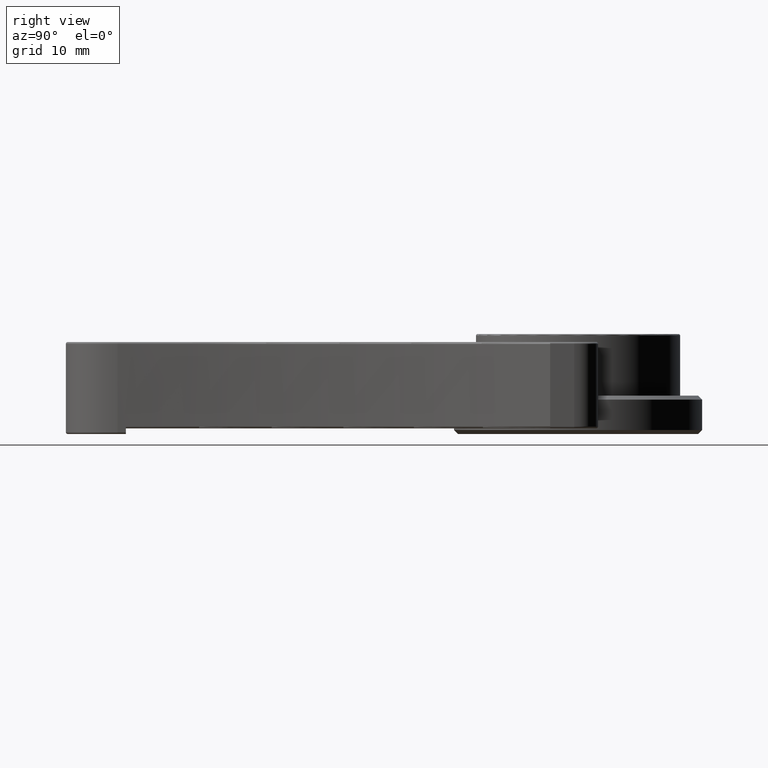
[diagram: clean part render]
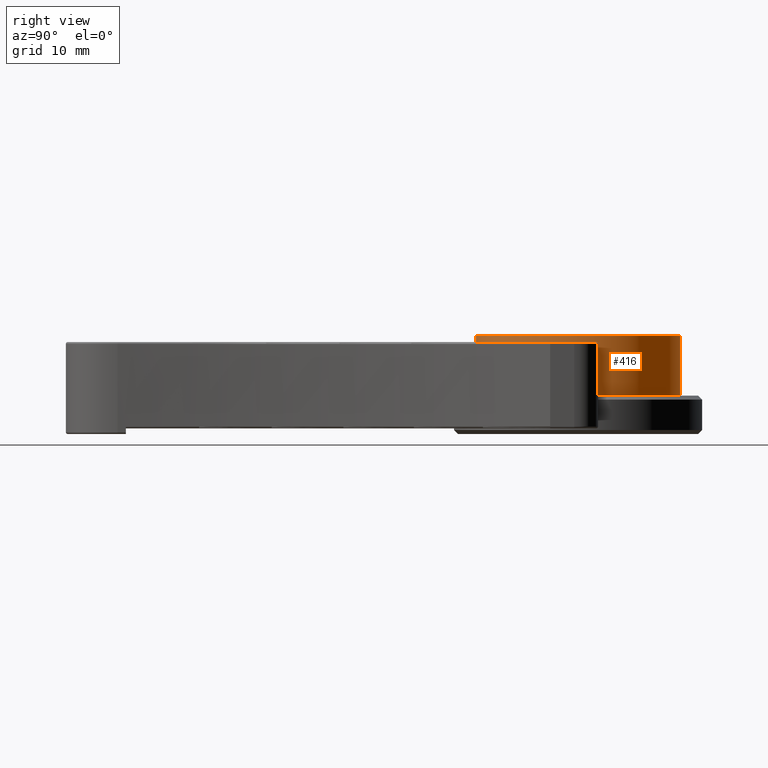
[diagram: same view with one face highlighted and labeled with its STEP entity id]
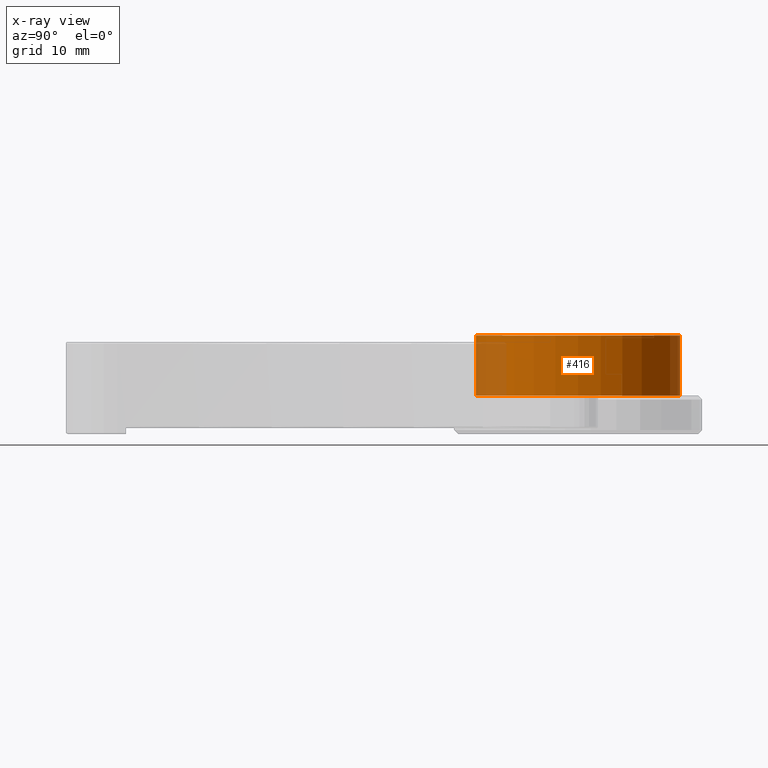
[diagram: x-ray of the same camera — body ghosted, the highlighted face saturated]
A machine part, right view. The second image highlights one B-rep face of the part: STEP entity #416.
The next image is the same camera in x-ray: the body ghosted, the highlighted face saturated — about 13% of this face is hidden behind the body in this view.
In plain terms, the highlighted cylindrical surface (partial cylindrical patch) has radius 12.75 mm, axis along (-0, -0, 1).
Its self-contained STEP definition (entity closure, byte-faithful):
#213 = AXIS2_PLACEMENT_3D ( 'NONE', #1270, #1041, #1025 ) ;
#276 = DIRECTION ( 'NONE',  ( -2.775557561562890700E-017, -4.783484228537276700E-017, 1.000000000000000000 ) ) ;
#328 = AXIS2_PLACEMENT_3D ( 'NONE', #1649, #1028, #1465 ) ;
#331 = AXIS2_PLACEMENT_3D ( 'NONE', #1077, #1325, #1315 ) ;
#414 = CARTESIAN_POINT ( 'NONE',  ( -9.222868784247589200E-012, 69.75000000000056800, 11.60000000000000000 ) ) ;
#416 = ADVANCED_FACE ( 'NONE', ( #994 ), #2269, .T. ) ;
#623 = ORIENTED_EDGE ( 'NONE', *, *, #2250, .T. ) ;
#638 = CARTESIAN_POINT ( 'NONE',  ( -9.222764700839029000E-012, 69.75000000000056800, 4.100000000000000500 ) ) ;
#747 = VERTEX_POINT ( 'NONE', #815 ) ;
#815 = CARTESIAN_POINT ( 'NONE',  ( -9.224430208916499500E-012, 44.25000000000058300, 11.60000000000000000 ) ) ;
#994 = FACE_OUTER_BOUND ( 'NONE', #1341, .T. ) ;
#1023 = ORIENTED_EDGE ( 'NONE', *, *, #2546, .T. ) ;
#1025 = DIRECTION ( 'NONE',  ( 0.0000000000000000000, 1.000000000000000000, 0.0000000000000000000 ) ) ;
#1028 = DIRECTION ( 'NONE',  ( 2.775557561562890700E-017, 4.783484228537276700E-017, -1.000000000000000000 ) ) ;
#1041 = DIRECTION ( 'NONE',  ( -2.775557561562890700E-017, -4.783484228537276700E-017, 1.000000000000000000 ) ) ;
#1042 = VERTEX_POINT ( 'NONE', #414 ) ;
#1077 = CARTESIAN_POINT ( 'NONE',  ( -9.222764700839029000E-012, 57.00000000000057600, 4.099999999999999600 ) ) ;
#1140 = DIRECTION ( 'NONE',  ( -2.775557561562890700E-017, -4.783484228537276700E-017, 1.000000000000000000 ) ) ;
#1181 = LINE ( 'NONE', #2205, #2532 ) ;
#1225 = EDGE_CURVE ( 'NONE', #1829, #747, #1181, .T. ) ;
#1270 = CARTESIAN_POINT ( 'NONE',  ( -9.222978418771269700E-012, 57.00000000000057600, 11.80000000000000100 ) ) ;
#1279 = EDGE_CURVE ( 'NONE', #1829, #1503, #1628, .T. ) ;
#1315 = DIRECTION ( 'NONE',  ( 0.0000000000000000000, 1.000000000000000000, 6.802837160693361600E-017 ) ) ;
#1325 = DIRECTION ( 'NONE',  ( -2.775557561562890700E-017, -4.783484228537276700E-017, 1.000000000000000000 ) ) ;
#1341 = EDGE_LOOP ( 'NONE', ( #1416, #2758, #623, #1023 ) ) ;
#1403 = VECTOR ( 'NONE', #1140, 1000.000000000000000 ) ;
#1416 = ORIENTED_EDGE ( 'NONE', *, *, #1225, .F. ) ;
#1465 = DIRECTION ( 'NONE',  ( 0.0000000000000000000, -1.000000000000000000, 0.0000000000000000000 ) ) ;
#1503 = VERTEX_POINT ( 'NONE', #638 ) ;
#1628 = CIRCLE ( 'NONE', #331, 12.74999999999999800 ) ;
#1649 = CARTESIAN_POINT ( 'NONE',  ( -9.222972867656146200E-012, 57.00000000000057600, 11.60000000000000000 ) ) ;
#1829 = VERTEX_POINT ( 'NONE', #2263 ) ;
#2005 = CARTESIAN_POINT ( 'NONE',  ( -9.222978418771269700E-012, 69.75000000000056800, 11.80000000000000100 ) ) ;
#2205 = CARTESIAN_POINT ( 'NONE',  ( -9.224539843440181600E-012, 44.25000000000058300, 11.80000000000000100 ) ) ;
#2250 = EDGE_CURVE ( 'NONE', #1503, #1042, #2271, .T. ) ;
#2263 = CARTESIAN_POINT ( 'NONE',  ( -9.224430208916499500E-012, 44.25000000000058300, 4.099999999999998800 ) ) ;
#2269 = CYLINDRICAL_SURFACE ( 'NONE', #213, 12.74999999999999800 ) ;
#2271 = LINE ( 'NONE', #2005, #1403 ) ;
#2532 = VECTOR ( 'NONE', #276, 1000.000000000000000 ) ;
#2546 = EDGE_CURVE ( 'NONE', #1042, #747, #2701, .T. ) ;
#2701 = CIRCLE ( 'NONE', #328, 12.74999999999999800 ) ;
#2758 = ORIENTED_EDGE ( 'NONE', *, *, #1279, .T. ) ;